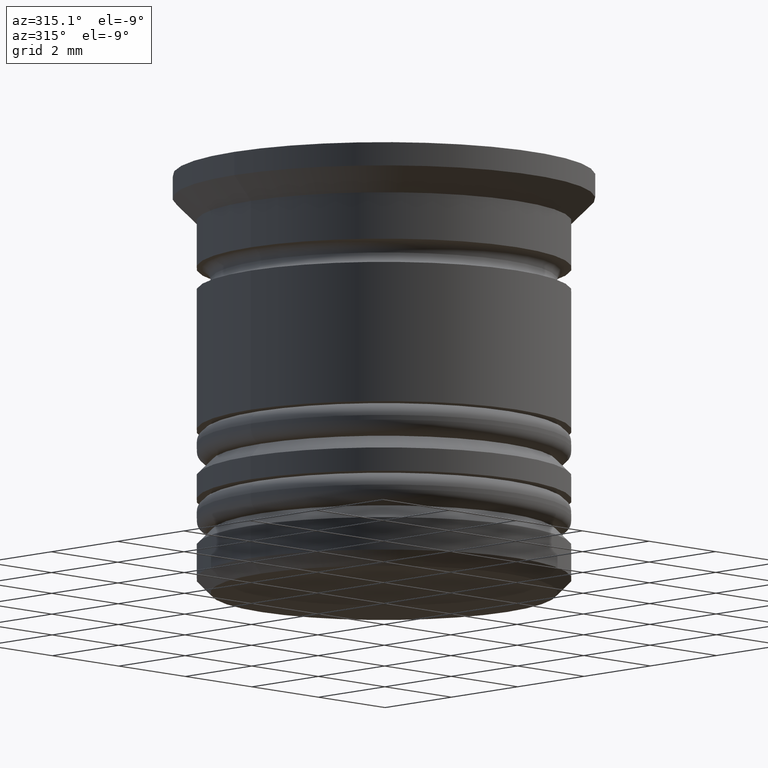
[diagram: clean part render]
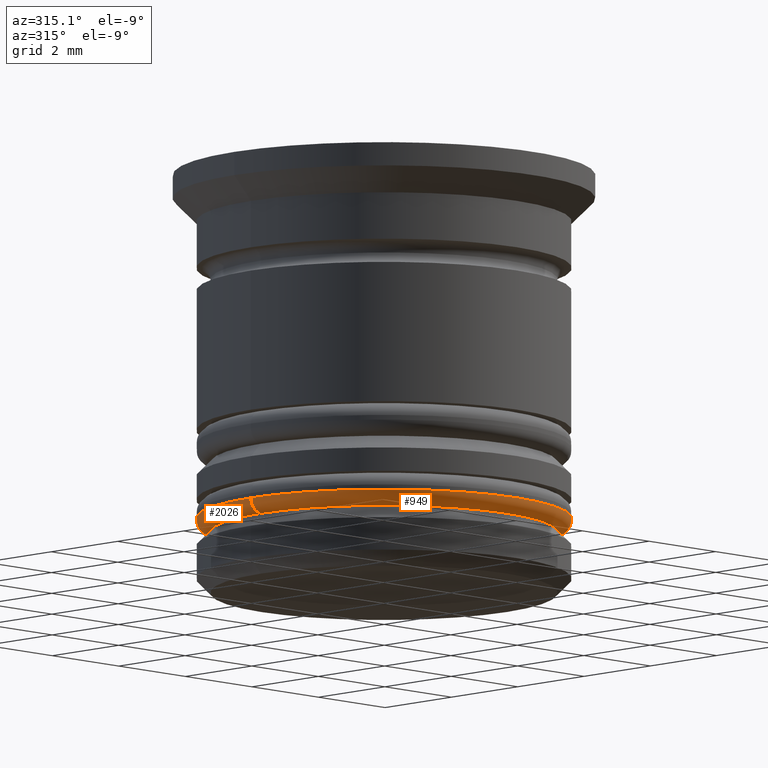
[diagram: same view with one multi-face feature highlighted, each face labeled with its STEP entity id]
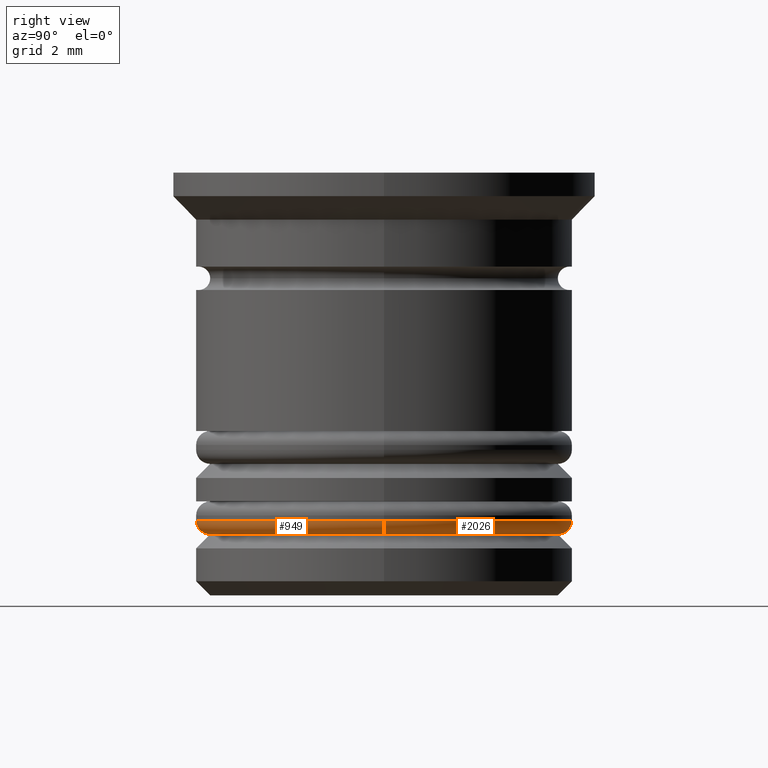
[diagram: same view with one multi-face feature highlighted, each face labeled with its STEP entity id]
A machine part, auxiliary view. The highlighted faces form ONE feature: a constant-radius fillet chain: 2 tangent blend faces with common blend radius 0.3 mm. The faces share edges in the B-rep.
A second angle (right view) of the same feature is appended — it is thin or edge-on in the first view.
Their STEP definitions:
[1] entity #949 (Torus):
#81 = CARTESIAN_POINT ( 'NONE',  ( 3.700000000000001954, 0.000000000000000000, -7.400000000000005684 ) ) ;
#106 = VERTEX_POINT ( 'NONE', #1962 ) ;
#149 = TOROIDAL_SURFACE ( 'NONE', #639, 3.700000000000001954, 0.2999999999999999889 ) ;
#180 = ORIENTED_EDGE ( 'NONE', *, *, #462, .T. ) ;
#186 = DIRECTION ( 'NONE',  ( 1.224646799147353207E-16, 1.000000000000000000, -0.000000000000000000 ) ) ;
#244 = DIRECTION ( 'NONE',  ( 0.000000000000000000, -1.000000000000000000, 0.000000000000000000 ) ) ;
#314 = AXIS2_PLACEMENT_3D ( 'NONE', #1211, #1229, #1046 ) ;
#415 = CIRCLE ( 'NONE', #1964, 3.700000000000001954 ) ;
#462 = EDGE_CURVE ( 'NONE', #2016, #1585, #714, .T. ) ;
#501 = VERTEX_POINT ( 'NONE', #574 ) ;
#503 = EDGE_CURVE ( 'NONE', #501, #1585, #935, .T. ) ;
#526 = DIRECTION ( 'NONE',  ( 0.000000000000000000, 0.000000000000000000, -1.000000000000000000 ) ) ;
#553 = ORIENTED_EDGE ( 'NONE', *, *, #738, .F. ) ;
#562 = CARTESIAN_POINT ( 'NONE',  ( 0.000000000000000000, 0.000000000000000000, -7.700000000000005507 ) ) ;
#574 = CARTESIAN_POINT ( 'NONE',  ( -4.000000000000001776, 4.898587196589415787E-16, -7.400000000000005684 ) ) ;
#593 = CARTESIAN_POINT ( 'NONE',  ( 3.700000000000001954, 0.000000000000000000, -7.700000000000005507 ) ) ;
#639 = AXIS2_PLACEMENT_3D ( 'NONE', #1653, #1966, #1678 ) ;
#714 = CIRCLE ( 'NONE', #1866, 0.2999999999999999334 ) ;
#720 = EDGE_LOOP ( 'NONE', ( #1250, #553, #180, #1724 ) ) ;
#738 = EDGE_CURVE ( 'NONE', #2016, #106, #415, .T. ) ;
#857 = DIRECTION ( 'NONE',  ( -1.000000000000000000, 1.224646799147353207E-16, 0.000000000000000000 ) ) ;
#876 = DIRECTION ( 'NONE',  ( -0.000000000000000000, -0.000000000000000000, -1.000000000000000000 ) ) ;
#883 = FACE_OUTER_BOUND ( 'NONE', #720, .T. ) ;
#935 = CIRCLE ( 'NONE', #314, 4.000000000000001776 ) ;
#949 = ADVANCED_FACE ( 'NONE', ( #883 ), #149, .T. ) ;
#1045 = DIRECTION ( 'NONE',  ( 1.000000000000000000, 0.000000000000000000, 0.000000000000000000 ) ) ;
#1046 = DIRECTION ( 'NONE',  ( 1.000000000000000000, 0.000000000000000000, 0.000000000000000000 ) ) ;
#1071 = CARTESIAN_POINT ( 'NONE',  ( -3.700000000000001954, 4.531193156845209159E-16, -7.400000000000005684 ) ) ;
#1130 = CIRCLE ( 'NONE', #1960, 0.2999999999999999334 ) ;
#1211 = CARTESIAN_POINT ( 'NONE',  ( 0.000000000000000000, 0.000000000000000000, -7.400000000000005684 ) ) ;
#1229 = DIRECTION ( 'NONE',  ( 0.000000000000000000, 0.000000000000000000, 1.000000000000000000 ) ) ;
#1250 = ORIENTED_EDGE ( 'NONE', *, *, #1314, .F. ) ;
#1314 = EDGE_CURVE ( 'NONE', #106, #501, #1130, .T. ) ;
#1585 = VERTEX_POINT ( 'NONE', #1754 ) ;
#1653 = CARTESIAN_POINT ( 'NONE',  ( 0.000000000000000000, 0.000000000000000000, -7.400000000000005684 ) ) ;
#1678 = DIRECTION ( 'NONE',  ( 1.000000000000000000, 0.000000000000000000, 0.000000000000000000 ) ) ;
#1724 = ORIENTED_EDGE ( 'NONE', *, *, #503, .F. ) ;
#1754 = CARTESIAN_POINT ( 'NONE',  ( 4.000000000000001776, 0.000000000000000000, -7.400000000000005684 ) ) ;
#1866 = AXIS2_PLACEMENT_3D ( 'NONE', #81, #244, #526 ) ;
#1960 = AXIS2_PLACEMENT_3D ( 'NONE', #1071, #186, #857 ) ;
#1962 = CARTESIAN_POINT ( 'NONE',  ( -3.700000000000001954, 4.714890176717312473E-16, -7.700000000000005507 ) ) ;
#1964 = AXIS2_PLACEMENT_3D ( 'NONE', #562, #876, #1045 ) ;
#1966 = DIRECTION ( 'NONE',  ( 0.000000000000000000, 0.000000000000000000, 1.000000000000000000 ) ) ;
#2016 = VERTEX_POINT ( 'NONE', #593 ) ;
[2] entity #2026 (Torus):
#81 = CARTESIAN_POINT ( 'NONE',  ( 3.700000000000001954, 0.000000000000000000, -7.400000000000005684 ) ) ;
#106 = VERTEX_POINT ( 'NONE', #1962 ) ;
#139 = DIRECTION ( 'NONE',  ( 0.000000000000000000, 0.000000000000000000, 1.000000000000000000 ) ) ;
#186 = DIRECTION ( 'NONE',  ( 1.224646799147353207E-16, 1.000000000000000000, -0.000000000000000000 ) ) ;
#242 = AXIS2_PLACEMENT_3D ( 'NONE', #997, #252, #1940 ) ;
#244 = DIRECTION ( 'NONE',  ( 0.000000000000000000, -1.000000000000000000, 0.000000000000000000 ) ) ;
#245 = TOROIDAL_SURFACE ( 'NONE', #1634, 3.700000000000001954, 0.2999999999999999889 ) ;
#250 = EDGE_CURVE ( 'NONE', #106, #2016, #1407, .T. ) ;
#252 = DIRECTION ( 'NONE',  ( 0.000000000000000000, 0.000000000000000000, 1.000000000000000000 ) ) ;
#264 = CARTESIAN_POINT ( 'NONE',  ( 0.000000000000000000, 0.000000000000000000, -7.700000000000005507 ) ) ;
#440 = FACE_OUTER_BOUND ( 'NONE', #554, .T. ) ;
#462 = EDGE_CURVE ( 'NONE', #2016, #1585, #714, .T. ) ;
#501 = VERTEX_POINT ( 'NONE', #574 ) ;
#526 = DIRECTION ( 'NONE',  ( 0.000000000000000000, 0.000000000000000000, -1.000000000000000000 ) ) ;
#551 = ORIENTED_EDGE ( 'NONE', *, *, #1314, .T. ) ;
#554 = EDGE_LOOP ( 'NONE', ( #797, #551, #1335, #1698 ) ) ;
#574 = CARTESIAN_POINT ( 'NONE',  ( -4.000000000000001776, 4.898587196589415787E-16, -7.400000000000005684 ) ) ;
#593 = CARTESIAN_POINT ( 'NONE',  ( 3.700000000000001954, 0.000000000000000000, -7.700000000000005507 ) ) ;
#714 = CIRCLE ( 'NONE', #1866, 0.2999999999999999334 ) ;
#797 = ORIENTED_EDGE ( 'NONE', *, *, #250, .F. ) ;
#857 = DIRECTION ( 'NONE',  ( -1.000000000000000000, 1.224646799147353207E-16, 0.000000000000000000 ) ) ;
#997 = CARTESIAN_POINT ( 'NONE',  ( 0.000000000000000000, 0.000000000000000000, -7.400000000000005684 ) ) ;
#1052 = DIRECTION ( 'NONE',  ( -0.000000000000000000, -0.000000000000000000, -1.000000000000000000 ) ) ;
#1067 = CARTESIAN_POINT ( 'NONE',  ( 0.000000000000000000, 0.000000000000000000, -7.400000000000005684 ) ) ;
#1071 = CARTESIAN_POINT ( 'NONE',  ( -3.700000000000001954, 4.531193156845209159E-16, -7.400000000000005684 ) ) ;
#1130 = CIRCLE ( 'NONE', #1960, 0.2999999999999999334 ) ;
#1220 = DIRECTION ( 'NONE',  ( 1.000000000000000000, 0.000000000000000000, 0.000000000000000000 ) ) ;
#1314 = EDGE_CURVE ( 'NONE', #106, #501, #1130, .T. ) ;
#1335 = ORIENTED_EDGE ( 'NONE', *, *, #1602, .F. ) ;
#1407 = CIRCLE ( 'NONE', #1665, 3.700000000000001954 ) ;
#1585 = VERTEX_POINT ( 'NONE', #1754 ) ;
#1602 = EDGE_CURVE ( 'NONE', #1585, #501, #1836, .T. ) ;
#1634 = AXIS2_PLACEMENT_3D ( 'NONE', #1067, #139, #1220 ) ;
#1665 = AXIS2_PLACEMENT_3D ( 'NONE', #264, #1052, #1995 ) ;
#1698 = ORIENTED_EDGE ( 'NONE', *, *, #462, .F. ) ;
#1754 = CARTESIAN_POINT ( 'NONE',  ( 4.000000000000001776, 0.000000000000000000, -7.400000000000005684 ) ) ;
#1836 = CIRCLE ( 'NONE', #242, 4.000000000000001776 ) ;
#1866 = AXIS2_PLACEMENT_3D ( 'NONE', #81, #244, #526 ) ;
#1940 = DIRECTION ( 'NONE',  ( 1.000000000000000000, 0.000000000000000000, 0.000000000000000000 ) ) ;
#1960 = AXIS2_PLACEMENT_3D ( 'NONE', #1071, #186, #857 ) ;
#1962 = CARTESIAN_POINT ( 'NONE',  ( -3.700000000000001954, 4.714890176717312473E-16, -7.700000000000005507 ) ) ;
#1995 = DIRECTION ( 'NONE',  ( 1.000000000000000000, 0.000000000000000000, 0.000000000000000000 ) ) ;
#2016 = VERTEX_POINT ( 'NONE', #593 ) ;
#2026 = ADVANCED_FACE ( 'NONE', ( #440 ), #245, .T. ) ;